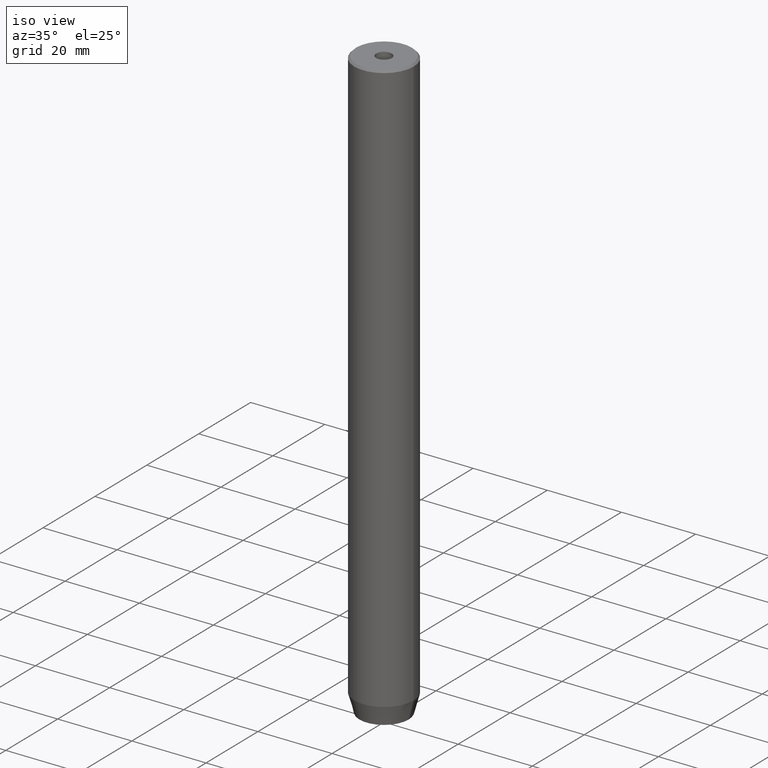
[diagram: clean part render]
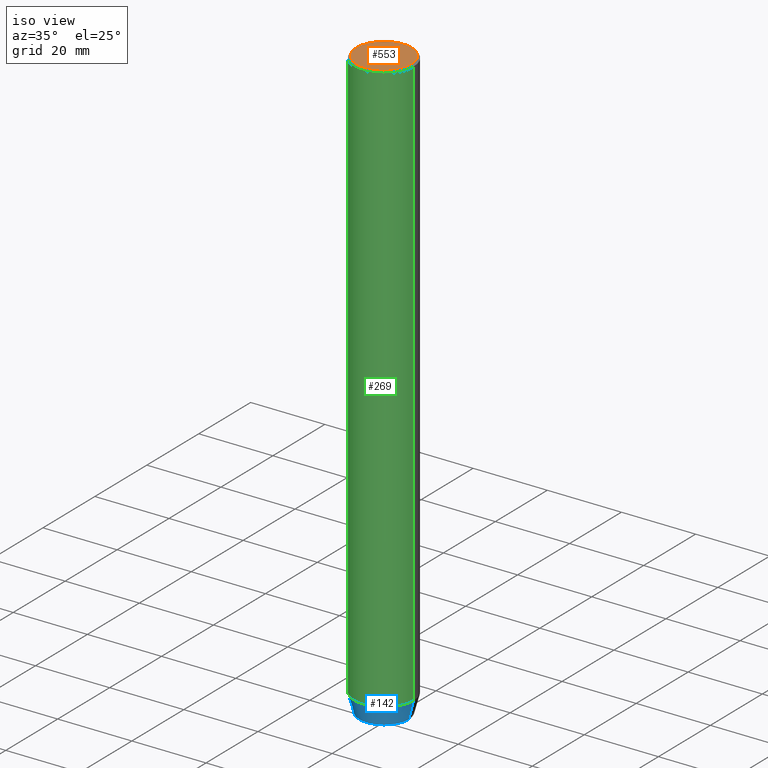
[diagram: same view with three faces highlighted in distinct colors, each labeled with its STEP entity id]
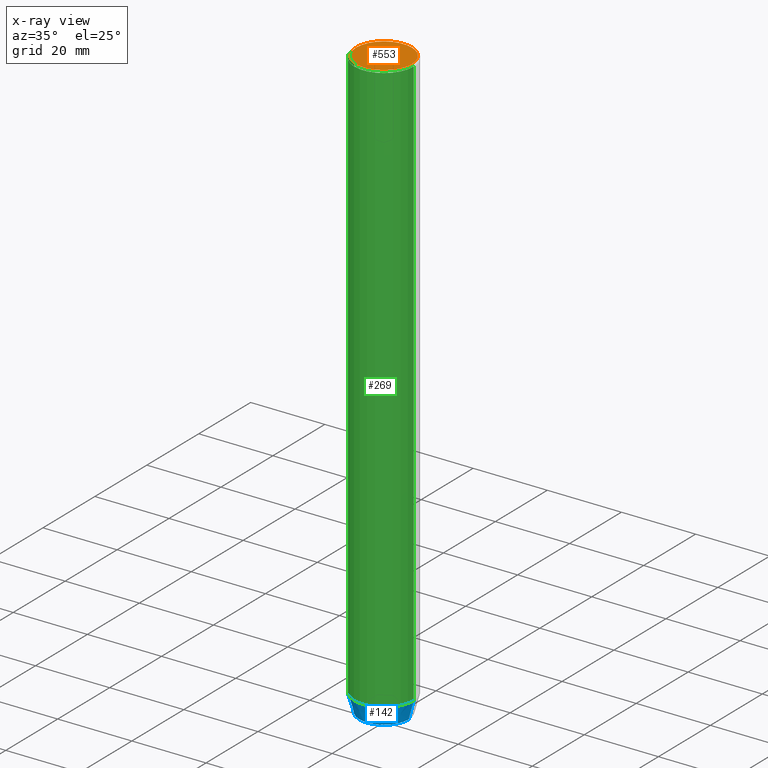
[diagram: x-ray of the same camera — body ghosted, the three highlighted faces saturated]
A machine part, iso view with three faces highlighted in distinct colors.
The next image is the same camera in x-ray (body ghosted, the three faces saturated) — at least one of them is partly hidden behind the body in this view.
Their STEP definitions:

[orange] entity #553 — the highlighted planar face has unit normal (0, -0, 1).
#22 = DIRECTION ( 'NONE',  ( -0.000000000000000000, -0.000000000000000000, 1.000000000000000000 ) ) ;
#29 = ORIENTED_EDGE ( 'NONE', *, *, #132, .F. ) ;
#32 = CIRCLE ( 'NONE', #154, 7.499999999999978684 ) ;
#35 = VERTEX_POINT ( 'NONE', #217 ) ;
#53 = EDGE_CURVE ( 'NONE', #35, #397, #253, .T. ) ;
#66 = DIRECTION ( 'NONE',  ( 1.000000000000000000, 0.000000000000000000, 0.000000000000000000 ) ) ;
#75 = AXIS2_PLACEMENT_3D ( 'NONE', #508, #22, #190 ) ;
#80 = VERTEX_POINT ( 'NONE', #361 ) ;
#116 = CARTESIAN_POINT ( 'NONE',  ( 0.000000000000000000, 0.000000000000000000, -1.990051048614449116E-16 ) ) ;
#121 = ORIENTED_EDGE ( 'NONE', *, *, #53, .T. ) ;
#126 = CARTESIAN_POINT ( 'NONE',  ( -2.099999999999998757, 2.571758278209440478E-16, -1.990051048614449116E-16 ) ) ;
#128 = CIRCLE ( 'NONE', #75, 2.099999999999998757 ) ;
#132 = EDGE_CURVE ( 'NONE', #299, #80, #501, .T. ) ;
#151 = DIRECTION ( 'NONE',  ( -0.000000000000000000, -0.000000000000000000, 1.000000000000000000 ) ) ;
#154 = AXIS2_PLACEMENT_3D ( 'NONE', #565, #364, #66 ) ;
#163 = CARTESIAN_POINT ( 'NONE',  ( 0.000000000000000000, 0.000000000000000000, 0.000000000000000000 ) ) ;
#178 = DIRECTION ( 'NONE',  ( -0.000000000000000000, -0.000000000000000000, 1.000000000000000000 ) ) ;
#190 = DIRECTION ( 'NONE',  ( 1.000000000000000000, 0.000000000000000000, 0.000000000000000000 ) ) ;
#215 = CARTESIAN_POINT ( 'NONE',  ( 0.000000000000000000, 0.000000000000000000, 0.000000000000000000 ) ) ;
#217 = CARTESIAN_POINT ( 'NONE',  ( 7.499999999999978684, 9.491012693391973982E-16, 0.000000000000000000 ) ) ;
#244 = AXIS2_PLACEMENT_3D ( 'NONE', #116, #151, #330 ) ;
#250 = EDGE_CURVE ( 'NONE', #397, #35, #32, .T. ) ;
#253 = CIRCLE ( 'NONE', #522, 7.499999999999978684 ) ;
#268 = DIRECTION ( 'NONE',  ( 0.000000000000000000, -0.000000000000000000, 1.000000000000000000 ) ) ;
#277 = EDGE_CURVE ( 'NONE', #80, #299, #128, .T. ) ;
#299 = VERTEX_POINT ( 'NONE', #126 ) ;
#300 = PLANE ( 'NONE',  #579 ) ;
#303 = FACE_BOUND ( 'NONE', #507, .T. ) ;
#330 = DIRECTION ( 'NONE',  ( 1.000000000000000000, 0.000000000000000000, 0.000000000000000000 ) ) ;
#358 = ORIENTED_EDGE ( 'NONE', *, *, #277, .F. ) ;
#360 = FACE_OUTER_BOUND ( 'NONE', #387, .T. ) ;
#361 = CARTESIAN_POINT ( 'NONE',  ( 2.099999999999998757, 0.000000000000000000, -1.990051048614449116E-16 ) ) ;
#364 = DIRECTION ( 'NONE',  ( -0.000000000000000000, -0.000000000000000000, 1.000000000000000000 ) ) ;
#387 = EDGE_LOOP ( 'NONE', ( #555, #121 ) ) ;
#397 = VERTEX_POINT ( 'NONE', #424 ) ;
#406 = DIRECTION ( 'NONE',  ( 1.000000000000000000, 0.000000000000000000, 0.000000000000000000 ) ) ;
#424 = CARTESIAN_POINT ( 'NONE',  ( -7.499999999999978684, 0.000000000000000000, 0.000000000000000000 ) ) ;
#486 = DIRECTION ( 'NONE',  ( 1.000000000000000000, 0.000000000000000000, 0.000000000000000000 ) ) ;
#501 = CIRCLE ( 'NONE', #244, 2.099999999999998757 ) ;
#507 = EDGE_LOOP ( 'NONE', ( #358, #29 ) ) ;
#508 = CARTESIAN_POINT ( 'NONE',  ( 0.000000000000000000, 0.000000000000000000, -1.990051048614449116E-16 ) ) ;
#522 = AXIS2_PLACEMENT_3D ( 'NONE', #163, #178, #406 ) ;
#553 = ADVANCED_FACE ( 'NONE', ( #303, #360 ), #300, .T. ) ;
#555 = ORIENTED_EDGE ( 'NONE', *, *, #250, .T. ) ;
#565 = CARTESIAN_POINT ( 'NONE',  ( 0.000000000000000000, 0.000000000000000000, 0.000000000000000000 ) ) ;
#579 = AXIS2_PLACEMENT_3D ( 'NONE', #215, #268, #486 ) ;

[blue] entity #142 — the highlighted conical surface has half-angle 15 deg.
#3 = CARTESIAN_POINT ( 'NONE',  ( -8.000000000000000000, 9.797174393178825657E-16, -154.9999999999999716 ) ) ;
#16 = AXIS2_PLACEMENT_3D ( 'NONE', #577, #337, #525 ) ;
#25 = CARTESIAN_POINT ( 'NONE',  ( 0.000000000000000000, 0.000000000000000000, -154.9999999999999716 ) ) ;
#34 = DIRECTION ( 'NONE',  ( 0.2588190451025212391, 0.000000000000000000, 0.9659258262890680902 ) ) ;
#40 = DIRECTION ( 'NONE',  ( -0.2588190451025212391, 3.169619151431771721E-17, 0.9659258262890680902 ) ) ;
#42 = VERTEX_POINT ( 'NONE', #139 ) ;
#59 = EDGE_CURVE ( 'NONE', #117, #42, #265, .T. ) ;
#102 = VECTOR ( 'NONE', #40, 1000.000000000000114 ) ;
#106 = CARTESIAN_POINT ( 'NONE',  ( -6.660254037844374864, 8.976816591066587293E-16, -160.0000000000000000 ) ) ;
#108 = VERTEX_POINT ( 'NONE', #134 ) ;
#117 = VERTEX_POINT ( 'NONE', #106 ) ;
#134 = CARTESIAN_POINT ( 'NONE',  ( 8.000000000000000000, 0.000000000000000000, -154.9999999999999716 ) ) ;
#139 = CARTESIAN_POINT ( 'NONE',  ( -8.000000000000000000, 9.797174393178825657E-16, -154.9999999999999716 ) ) ;
#142 = ADVANCED_FACE ( 'NONE', ( #461 ), #214, .T. ) ;
#170 = EDGE_CURVE ( 'NONE', #42, #108, #407, .T. ) ;
#187 = VECTOR ( 'NONE', #34, 1000.000000000000114 ) ;
#192 = CARTESIAN_POINT ( 'NONE',  ( 0.000000000000000000, 0.000000000000000000, -154.9999999999999716 ) ) ;
#199 = ORIENTED_EDGE ( 'NONE', *, *, #59, .F. ) ;
#212 = CARTESIAN_POINT ( 'NONE',  ( 6.660254037844374864, 0.000000000000000000, -160.0000000000000000 ) ) ;
#214 = CONICAL_SURFACE ( 'NONE', #561, 8.000000000000000000, 0.2617993877991499629 ) ;
#225 = DIRECTION ( 'NONE',  ( 1.000000000000000000, 0.000000000000000000, 0.000000000000000000 ) ) ;
#265 = LINE ( 'NONE', #3, #102 ) ;
#283 = AXIS2_PLACEMENT_3D ( 'NONE', #192, #516, #225 ) ;
#315 = EDGE_CURVE ( 'NONE', #521, #108, #381, .T. ) ;
#329 = ORIENTED_EDGE ( 'NONE', *, *, #170, .F. ) ;
#337 = DIRECTION ( 'NONE',  ( -0.000000000000000000, -0.000000000000000000, 1.000000000000000000 ) ) ;
#381 = LINE ( 'NONE', #386, #187 ) ;
#386 = CARTESIAN_POINT ( 'NONE',  ( 8.000000000000000000, 0.000000000000000000, -154.9999999999999716 ) ) ;
#407 = CIRCLE ( 'NONE', #283, 8.000000000000000000 ) ;
#408 = EDGE_LOOP ( 'NONE', ( #199, #582, #425, #329 ) ) ;
#415 = DIRECTION ( 'NONE',  ( -0.000000000000000000, -0.000000000000000000, 1.000000000000000000 ) ) ;
#425 = ORIENTED_EDGE ( 'NONE', *, *, #315, .T. ) ;
#461 = FACE_OUTER_BOUND ( 'NONE', #408, .T. ) ;
#478 = EDGE_CURVE ( 'NONE', #117, #521, #571, .T. ) ;
#500 = DIRECTION ( 'NONE',  ( 1.000000000000000000, 0.000000000000000000, 0.000000000000000000 ) ) ;
#516 = DIRECTION ( 'NONE',  ( -0.000000000000000000, -0.000000000000000000, 1.000000000000000000 ) ) ;
#521 = VERTEX_POINT ( 'NONE', #212 ) ;
#525 = DIRECTION ( 'NONE',  ( 1.000000000000000000, 0.000000000000000000, 0.000000000000000000 ) ) ;
#561 = AXIS2_PLACEMENT_3D ( 'NONE', #25, #415, #500 ) ;
#571 = CIRCLE ( 'NONE', #16, 6.660254037844374864 ) ;
#577 = CARTESIAN_POINT ( 'NONE',  ( 0.000000000000000000, 0.000000000000000000, -160.0000000000000000 ) ) ;
#582 = ORIENTED_EDGE ( 'NONE', *, *, #478, .T. ) ;

[green] entity #269 — the highlighted cylindrical surface (edge-blend (fillet) strip) has radius 8 mm, axis along (-0, -0, 1).
#12 = FACE_OUTER_BOUND ( 'NONE', #342, .T. ) ;
#23 = ORIENTED_EDGE ( 'NONE', *, *, #436, .F. ) ;
#42 = VERTEX_POINT ( 'NONE', #139 ) ;
#71 = ORIENTED_EDGE ( 'NONE', *, *, #208, .T. ) ;
#78 = ORIENTED_EDGE ( 'NONE', *, *, #170, .T. ) ;
#86 = DIRECTION ( 'NONE',  ( 0.000000000000000000, 0.000000000000000000, -1.000000000000000000 ) ) ;
#108 = VERTEX_POINT ( 'NONE', #134 ) ;
#109 = CARTESIAN_POINT ( 'NONE',  ( 8.000000000000000000, 0.000000000000000000, 0.000000000000000000 ) ) ;
#124 = LINE ( 'NONE', #157, #289 ) ;
#134 = CARTESIAN_POINT ( 'NONE',  ( 8.000000000000000000, 0.000000000000000000, -154.9999999999999716 ) ) ;
#139 = CARTESIAN_POINT ( 'NONE',  ( -8.000000000000000000, 9.797174393178825657E-16, -154.9999999999999716 ) ) ;
#157 = CARTESIAN_POINT ( 'NONE',  ( -8.000000000000000000, 9.797174393178825657E-16, 0.000000000000000000 ) ) ;
#162 = ORIENTED_EDGE ( 'NONE', *, *, #575, .T. ) ;
#170 = EDGE_CURVE ( 'NONE', #42, #108, #407, .T. ) ;
#182 = VERTEX_POINT ( 'NONE', #512 ) ;
#185 = CYLINDRICAL_SURFACE ( 'NONE', #318, 8.000000000000000000 ) ;
#192 = CARTESIAN_POINT ( 'NONE',  ( 0.000000000000000000, 0.000000000000000000, -154.9999999999999716 ) ) ;
#208 = EDGE_CURVE ( 'NONE', #108, #266, #456, .T. ) ;
#218 = CARTESIAN_POINT ( 'NONE',  ( 0.000000000000000000, 0.000000000000000000, -0.5000000000000213163 ) ) ;
#225 = DIRECTION ( 'NONE',  ( 1.000000000000000000, 0.000000000000000000, 0.000000000000000000 ) ) ;
#228 = CARTESIAN_POINT ( 'NONE',  ( 8.000000000000000000, 0.000000000000000000, -0.5000000000000213163 ) ) ;
#234 = CARTESIAN_POINT ( 'NONE',  ( 0.000000000000000000, 0.000000000000000000, 0.000000000000000000 ) ) ;
#251 = AXIS2_PLACEMENT_3D ( 'NONE', #218, #86, #256 ) ;
#256 = DIRECTION ( 'NONE',  ( 1.000000000000000000, 0.000000000000000000, 0.000000000000000000 ) ) ;
#266 = VERTEX_POINT ( 'NONE', #228 ) ;
#269 = ADVANCED_FACE ( 'NONE', ( #12 ), #185, .T. ) ;
#279 = DIRECTION ( 'NONE',  ( 1.000000000000000000, 0.000000000000000000, 0.000000000000000000 ) ) ;
#283 = AXIS2_PLACEMENT_3D ( 'NONE', #192, #516, #225 ) ;
#289 = VECTOR ( 'NONE', #468, 1000.000000000000000 ) ;
#318 = AXIS2_PLACEMENT_3D ( 'NONE', #234, #321, #279 ) ;
#321 = DIRECTION ( 'NONE',  ( -0.000000000000000000, -0.000000000000000000, 1.000000000000000000 ) ) ;
#342 = EDGE_LOOP ( 'NONE', ( #23, #78, #71, #162 ) ) ;
#407 = CIRCLE ( 'NONE', #283, 8.000000000000000000 ) ;
#429 = CIRCLE ( 'NONE', #251, 8.000000000000000000 ) ;
#436 = EDGE_CURVE ( 'NONE', #42, #182, #124, .T. ) ;
#456 = LINE ( 'NONE', #109, #463 ) ;
#463 = VECTOR ( 'NONE', #465, 1000.000000000000000 ) ;
#465 = DIRECTION ( 'NONE',  ( -0.000000000000000000, -0.000000000000000000, 1.000000000000000000 ) ) ;
#468 = DIRECTION ( 'NONE',  ( -0.000000000000000000, -0.000000000000000000, 1.000000000000000000 ) ) ;
#512 = CARTESIAN_POINT ( 'NONE',  ( -8.000000000000000000, 9.797174393178825657E-16, -0.5000000000000213163 ) ) ;
#516 = DIRECTION ( 'NONE',  ( -0.000000000000000000, -0.000000000000000000, 1.000000000000000000 ) ) ;
#575 = EDGE_CURVE ( 'NONE', #266, #182, #429, .T. ) ;